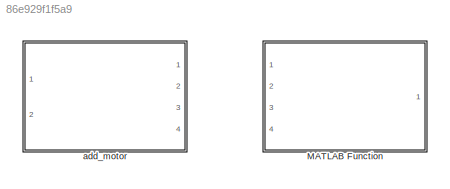
MODEL slx_86e929f1f5a9
KIND library
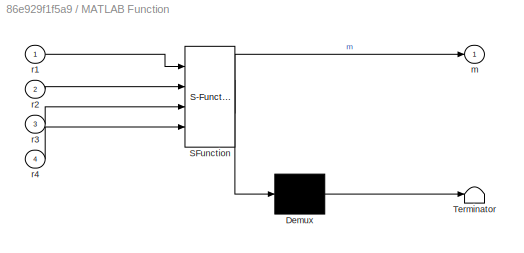
BLOCK [SubSystem] MATLAB Function
  ErrorFcn = Stateflow.Translate.translate
  PermitHierarchicalResolution = ExplicitOnly
  Ports = [4, 1]
  RequestExecContextInheritance = off
  SFBlockType = MATLAB Function
  TreatAsAtomicUnit = on
BLOCK [Demux] MATLAB Function/ Demux 
  Outputs = 1
  Ports = [1, 1]
BLOCK [S-Function] MATLAB Function/ SFunction 
  EnableBusSupport = off
  FunctionName = sf_sfun
  PortCounts = [4 2]
  Ports = [4, 2]
  Tag = Stateflow S-Function Lib_AP_Motors 3
BLOCK [Terminator] MATLAB Function/ Terminator 
BLOCK [Outport] MATLAB Function/m
  IconDisplay = Port number
BLOCK [Inport] MATLAB Function/r1
  IconDisplay = Port number
BLOCK [Inport] MATLAB Function/r2
  IconDisplay = Port number
  Port = 2
BLOCK [Inport] MATLAB Function/r3
  IconDisplay = Port number
  Port = 3
BLOCK [Inport] MATLAB Function/r4
  IconDisplay = Port number
  Port = 4
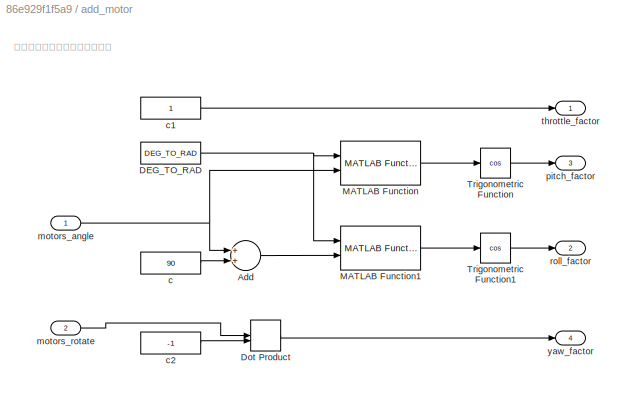
BLOCK [SubSystem] add_motor
  Ports = [2, 4]
  RequestExecContextInheritance = off
BLOCK [Sum] add_motor/Add
  InputSameDT = off
  OutDataTypeStr = Inherit: Inherit via internal rule
  Ports = [2, 1]
  SaturateOnIntegerOverflow = off
BLOCK [Constant] add_motor/DEG_TO_RAD
  Description = 低通滤波器的时间常数
  Value = DEG_TO_RAD
BLOCK [DotProduct] add_motor/Dot Product
  OutDataTypeStr = Inherit: Inherit via internal rule
BLOCK [Reference] add_motor/MATLAB Function  REF=Lib_AP_Math/MATLAB Function
  Ports = [2, 1]
  SourceBlock = Lib_AP_Math/MATLAB Function
  SourceType = SubSystem
BLOCK [Reference] add_motor/MATLAB Function1  REF=Lib_AP_Math/MATLAB Function
  Ports = [2, 1]
  SourceBlock = Lib_AP_Math/MATLAB Function
  SourceType = SubSystem
BLOCK [Trigonometry] add_motor/Trigonometric Function
  Operator = cos
  Ports = [1, 1]
BLOCK [Trigonometry] add_motor/Trigonometric Function1
  Operator = cos
  Ports = [1, 1]
BLOCK [Constant] add_motor/c
  Description = 低通滤波器的时间常数
  Value = 90
BLOCK [Constant] add_motor/c1
  Description = 低通滤波器的时间常数
BLOCK [Constant] add_motor/c2
  Description = 低通滤波器的时间常数
  Value = -1
BLOCK [Inport] add_motor/motors_angle
  IconDisplay = Port number
BLOCK [Inport] add_motor/motors_rotate
  IconDisplay = Port number
  Port = 2
BLOCK [Outport] add_motor/pitch_factor
  IconDisplay = Port number
  Port = 3
BLOCK [Outport] add_motor/roll_factor
  IconDisplay = Port number
  Port = 2
BLOCK [Outport] add_motor/throttle_factor
  IconDisplay = Port number
BLOCK [Outport] add_motor/yaw_factor
  IconDisplay = Port number
  Port = 4
ANNOTATION add_motor: 根据动力布局计算姿态影响因子
LINE add_motor/Add:1 -> add_motor/MATLAB Function1:2
NET add_motor/DEG_TO_RAD:1 -> add_motor/MATLAB Function1:1, add_motor/MATLAB Function:1
LINE add_motor/Dot Product:1 -> add_motor/yaw_factor:1
LINE add_motor/MATLAB Function1:1 -> add_motor/Trigonometric Function1:1
LINE add_motor/MATLAB Function:1 -> add_motor/Trigonometric Function:1
LINE add_motor/Trigonometric Function1:1 -> add_motor/roll_factor:1
LINE add_motor/Trigonometric Function:1 -> add_motor/pitch_factor:1
LINE add_motor/c1:1 -> add_motor/throttle_factor:1
LINE add_motor/c2:1 -> add_motor/Dot Product:2
LINE add_motor/c:1 -> add_motor/Add:2
NET add_motor/motors_angle:1 -> add_motor/Add:1, add_motor/MATLAB Function:2
LINE add_motor/motors_rotate:1 -> add_motor/Dot Product:1
note: NET lines group one-source signal fan-out (src -> all destinations, sorted); 1:1 wires keep LINE
CHART MATLAB Function states=1 transitions=1
  STATE_LABEL 'eML_blk_kernel()'
  STATE_LABEL 'SCRIPT:\nfunction m= r_to_m(r1,r2,r3,r4)\nm=[r1;r2;r3;r4];\n\n'
